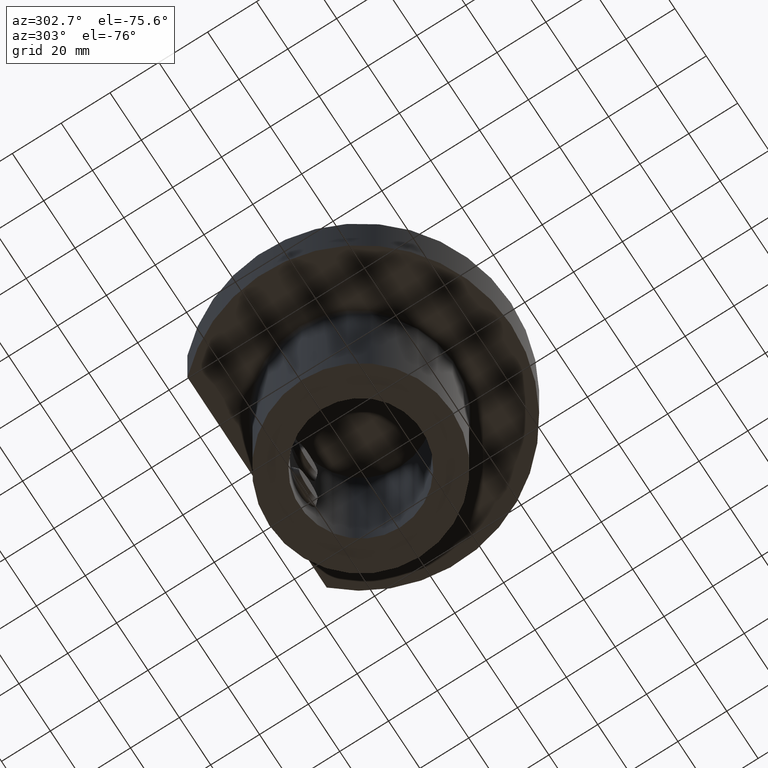
[diagram: clean part render]
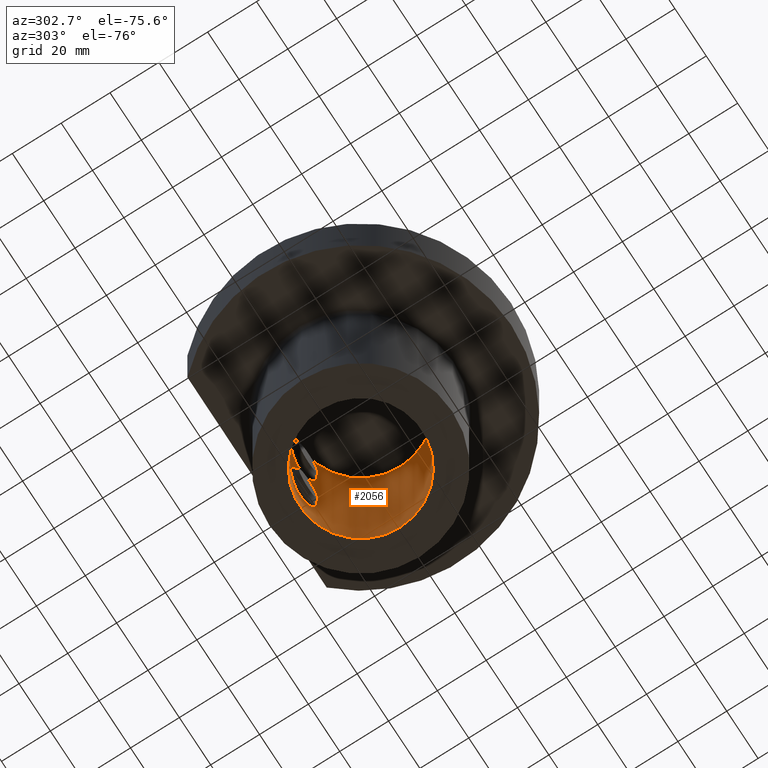
[diagram: same view with one face highlighted and labeled with its STEP entity id]
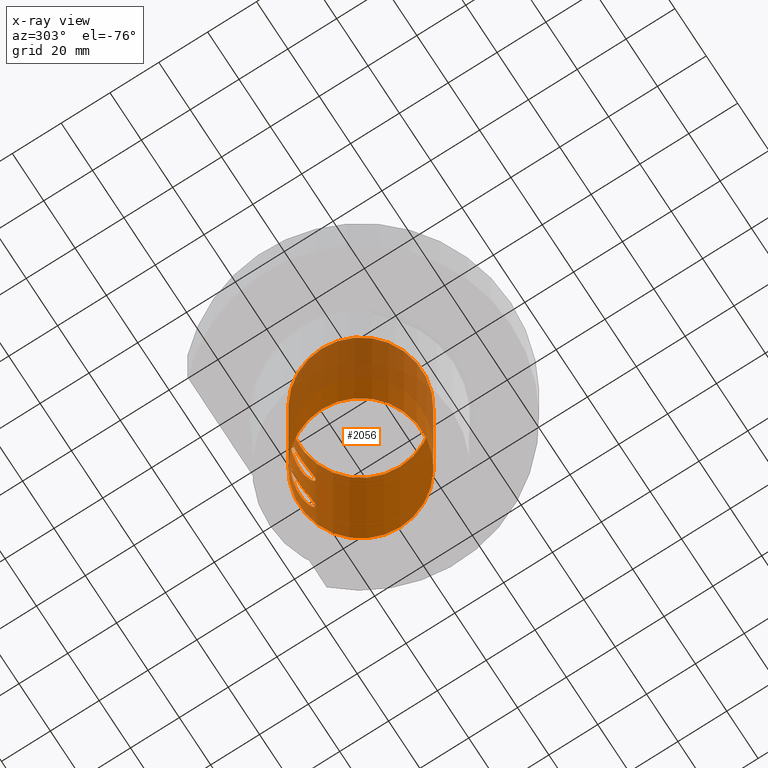
[diagram: x-ray of the same camera — body ghosted, the highlighted face saturated]
A machine part, auxiliary view. The second image highlights one B-rep face of the part: STEP entity #2056.
The next image is the same camera in x-ray: the body ghosted, the highlighted face saturated — about 34% of this face is hidden behind the body in this view.
In plain terms, the highlighted cylindrical surface (bore or boss wall) has radius 25 mm, axis along (-0, -0, -1).
Its self-contained STEP definition (entity closure, byte-faithful):
#58 = VERTEX_POINT ( 'NONE', #2453 ) ;
#84 = CARTESIAN_POINT ( 'NONE',  ( 5.283232693578720607, 24.43624188836538735, -33.98703924354256145 ) ) ;
#124 = CARTESIAN_POINT ( 'NONE',  ( 2.087939394558878892, 24.91796508502199003, -83.74044910550094301 ) ) ;
#153 = CARTESIAN_POINT ( 'NONE',  ( 7.173120264869881524, 23.94917276027051045, -43.55168137007378704 ) ) ;
#189 = CARTESIAN_POINT ( 'NONE',  ( -4.016045351225145943, 24.67930339366006365, -82.93881975800947259 ) ) ;
#221 = CARTESIAN_POINT ( 'NONE',  ( -5.286022485591604259, 24.43771186109113813, -46.02749517437685256 ) ) ;
#261 = CARTESIAN_POINT ( 'NONE',  ( 4.235546292640723465, 24.63956624237481918, -69.20827150128248206 ) ) ;
#296 = CARTESIAN_POINT ( 'NONE',  ( -6.355246737824958636, 24.18062479308375856, -35.11263581254626587 ) ) ;
#327 = CARTESIAN_POINT ( 'NONE',  ( -2.585092342586864600, 24.86727631948928874, -83.57540640016543421 ) ) ;
#355 = CARTESIAN_POINT ( 'NONE',  ( -6.016943766732864241, 24.26572631756485166, -45.27865306493048081 ) ) ;
#393 = CARTESIAN_POINT ( 'NONE',  ( 7.586585321997189268, 23.82200043979787907, -73.40851930458856600 ) ) ;
#426 = CARTESIAN_POINT ( 'NONE',  ( -2.081598207676718548, 24.91447963258562837, -32.27104989442653959 ) ) ;
#499 = CARTESIAN_POINT ( 'NONE',  ( -2.589455442944147645, 24.86681456427818304, -68.42610995595050838 ) ) ;
#505 = CARTESIAN_POINT ( 'NONE',  ( -4.885257966620121017, 24.52197647539978576, -46.35650252765911716 ) ) ;
#524 = FACE_BOUND ( 'NONE', #9615, .T. ) ;
#566 = CARTESIAN_POINT ( 'NONE',  ( -0.5310342171101222197, 24.99988834473702326, -68.00034892276474352 ) ) ;
#610 = CARTESIAN_POINT ( 'NONE',  ( -8.000000000000031974, 23.68543856465396402, -76.00000000000000000 ) ) ;
#651 = EDGE_LOOP ( 'NONE', ( #9332 ) ) ;
#675 = CARTESIAN_POINT ( 'NONE',  ( -8.000000000000033751, 23.68543856465397113, -76.53231545348803877 ) ) ;
#1013 = CARTESIAN_POINT ( 'NONE',  ( 7.727574139139621323, 23.77585123429835079, -37.91346509424673172 ) ) ;
#1069 = DIRECTION ( 'NONE',  ( -3.552713678800500140E-16, -1.224646799147350002E-16, -1.000000000000000000 ) ) ;
#1162 = CARTESIAN_POINT ( 'NONE',  ( 4.879693809956951789, 24.52001332875391881, -33.65517273093555417 ) ) ;
#1237 = CARTESIAN_POINT ( 'NONE',  ( 4.017865052121518232, 24.67895536812695312, -33.06249620044484061 ) ) ;
#1278 = CARTESIAN_POINT ( 'NONE',  ( 7.185872851256321248, 23.94592268356456088, -72.44538603949588662 ) ) ;
#1306 = CARTESIAN_POINT ( 'NONE',  ( 5.287988562034211526, 24.43727380229463719, -46.02568145312127967 ) ) ;
#1343 = CARTESIAN_POINT ( 'NONE',  ( -5.839387015473536557, 24.30919563068782807, -81.47437469559797307 ) ) ;
#1377 = CARTESIAN_POINT ( 'NONE',  ( -5.475739172390425402, 24.39368114705456136, -34.16189219740005711 ) ) ;
#1409 = ORIENTED_EDGE ( 'NONE', *, *, #3197, .F. ) ;
#1424 = CARTESIAN_POINT ( 'NONE',  ( 5.279954920656042994, 24.43694536756549951, -82.01580297458566804 ) ) ;
#1490 = CARTESIAN_POINT ( 'NONE',  ( 4.877560477166621666, 24.52043283984039945, -82.34643310724814569 ) ) ;
#1525 = CARTESIAN_POINT ( 'NONE',  ( -1.826761218723367497, 24.93450010446870024, -32.20694667434002412 ) ) ;
#1557 = CARTESIAN_POINT ( 'NONE',  ( 5.474994813983730779, 24.39385863179693459, -81.83888954494970847 ) ) ;
#1586 = CARTESIAN_POINT ( 'NONE',  ( -4.889519308986401747, 24.52120688279374505, -69.64634343396427596 ) ) ;
#1593 = CARTESIAN_POINT ( 'NONE',  ( -1.044781654543401883, 24.97953356031825578, -47.93584858893347445 ) ) ;
#1664 = CARTESIAN_POINT ( 'NONE',  ( -5.290007374338185464, 24.43680170086618730, -69.97636294705144167 ) ) ;
#1991 = EDGE_LOOP ( 'NONE', ( #1409 ) ) ;
#2048 = CARTESIAN_POINT ( 'NONE',  ( 6.503697277031719182, 24.13968428595022075, -44.66575856978575843 ) ) ;
#2056 = ADVANCED_FACE ( 'Defeature completata1_68', ( #10417, #524, #4972, #9586 ), #3881, .F. ) ;
#2119 = DIRECTION ( 'NONE',  ( -1.000000000000000000, 0.000000000000000000, 4.163336342344343929E-16 ) ) ;
#2201 = CARTESIAN_POINT ( 'NONE',  ( 6.348846675132334028, 24.18101170456889193, -44.87444289967168487 ) ) ;
#2272 = CARTESIAN_POINT ( 'NONE',  ( 6.024870727611026489, 24.26607304937154908, -34.71139395843217557 ) ) ;
#2346 = CARTESIAN_POINT ( 'NONE',  ( 7.574018196488935040, 23.82521253526695304, -37.41093098815795059 ) ) ;
#2382 = CARTESIAN_POINT ( 'NONE',  ( 6.357541531059365703, 24.17998829043283848, -80.88387952131172653 ) ) ;
#2415 = CARTESIAN_POINT ( 'NONE',  ( -7.186424383325113574, 23.94575699020569814, -36.44647738385827296 ) ) ;
#2450 = CARTESIAN_POINT ( 'NONE',  ( -6.014207798785776937, 24.26641085594027558, -81.28183186944502836 ) ) ;
#2453 = CARTESIAN_POINT ( 'NONE',  ( -25.00000000000000000, -1.224646799147353375E-14, -99.99999999999998579 ) ) ;
#2478 = CARTESIAN_POINT ( 'NONE',  ( -4.667669055761608732, 24.56137705486223766, -33.49763780215545950 ) ) ;
#2519 = CARTESIAN_POINT ( 'NONE',  ( -6.937784401963187797, 24.01993851387733514, -80.01725592508907425 ) ) ;
#2551 = CARTESIAN_POINT ( 'NONE',  ( -1.055519419702769079, 24.98301996946253567, -32.05262146982558846 ) ) ;
#2584 = CARTESIAN_POINT ( 'NONE',  ( 4.012726383827715182, 24.67695673170529957, -69.07423696741749097 ) ) ;
#2620 = CARTESIAN_POINT ( 'NONE',  ( -7.895000030900684251, 23.72070649416272659, -41.31811915912166455 ) ) ;
#2655 = CARTESIAN_POINT ( 'NONE',  ( -2.831536878833908588, 24.84031699905802171, -83.48668844874494255 ) ) ;
#2679 = CARTESIAN_POINT ( 'NONE',  ( -7.793387546050762005, 23.75428454412616475, -74.17471194807342272 ) ) ;
#2888 = AXIS2_PLACEMENT_3D ( 'NONE', #5036, #8289, #12662 ) ;
#3197 = EDGE_CURVE ( 'NONE', #8970, #8970, #13921, .T. ) ;
#3284 = CARTESIAN_POINT ( 'NONE',  ( 7.589606399388563851, 23.82105500478512283, -42.58368249428988861 ) ) ;
#3360 = CARTESIAN_POINT ( 'NONE',  ( 1.055001192302488011, 24.98303111169243707, -32.05258848080919876 ) ) ;
#3375 = CARTESIAN_POINT ( 'NONE',  ( -4.432010314303624783E-14, -1.224646799147353375E-14, -100.0000000000000000 ) ) ;
#3426 = CARTESIAN_POINT ( 'NONE',  ( 2.584436575667824254, 24.86734525391045025, -32.42436734725050229 ) ) ;
#3446 = DIRECTION ( 'NONE',  ( -1.000000000000000000, 0.000000000000000000, 5.551115123125792563E-16 ) ) ;
#3473 = CARTESIAN_POINT ( 'NONE',  ( 1.318064329657369527, 24.96655413040242522, -83.89501217481233653 ) ) ;
#3504 = CARTESIAN_POINT ( 'NONE',  ( 0.5278488671488079653, 24.99580656735017570, -47.98692407156011086 ) ) ;
#3541 = CARTESIAN_POINT ( 'NONE',  ( -5.289320106270437805, 24.43695612230670378, -82.02428160949830271 ) ) ;
#3571 = CARTESIAN_POINT ( 'NONE',  ( -7.999954717824393491, 23.68545385917335366, -40.26500733184401071 ) ) ;
#3608 = CARTESIAN_POINT ( 'NONE',  ( -7.575007928152908576, 23.82489869136021099, -78.58629687865405344 ) ) ;
#3635 = CARTESIAN_POINT ( 'NONE',  ( -8.000090212167799919, 23.68540809456878904, -39.47409688167511632 ) ) ;
#3678 = CARTESIAN_POINT ( 'NONE',  ( 7.588305034608171518, 23.82145322700170098, -78.58660630716846640 ) ) ;
#3713 = CARTESIAN_POINT ( 'NONE',  ( -2.587088401387740877, 24.87053350708040966, -47.58815410364926635 ) ) ;
#3762 = CARTESIAN_POINT ( 'NONE',  ( 4.015958742358032296, 24.67642816428153196, -82.92387937847598778 ) ) ;
#3773 = EDGE_CURVE ( 'NONE', #58, #58, #12270, .T. ) ;
#3799 = CARTESIAN_POINT ( 'NONE',  ( -4.878901081979910792, 24.52017433565688620, -33.65454344350248306 ) ) ;
#3881 = CYLINDRICAL_SURFACE ( 'NONE', #2888, 24.99999999999995737 ) ;
#4304 = CARTESIAN_POINT ( 'NONE',  ( 2.080000605445448958, 24.91460956692234063, -32.27063262715498837 ) ) ;
#4356 = CARTESIAN_POINT ( 'NONE',  ( -1.447730824111204192E-14, -1.959434878635791558E-15, -15.99999999999998579 ) ) ;
#4393 = DIRECTION ( 'NONE',  ( -4.440892098500630106E-16, -1.224646799147350002E-16, -1.000000000000000000 ) ) ;
#4449 = CARTESIAN_POINT ( 'NONE',  ( 1.825464389336046267, 24.93459238736724259, -32.20665193218937361 ) ) ;
#4514 = CARTESIAN_POINT ( 'NONE',  ( 7.999637040240939356, 23.68556115800613426, -39.46884741068448221 ) ) ;
#4547 = CARTESIAN_POINT ( 'NONE',  ( 1.054485028163441251, 24.98307149443160569, -68.05245913433061844 ) ) ;
#4605 = ORIENTED_EDGE ( 'NONE', *, *, #7924, .T. ) ;
#4615 = CARTESIAN_POINT ( 'NONE',  ( 7.934797897012891177, 23.70737729456863718, -74.94711582120851290 ) ) ;
#4654 = CARTESIAN_POINT ( 'NONE',  ( -5.840081616376468610, 24.30903937622861832, -45.47372173780243543 ) ) ;
#4689 = CARTESIAN_POINT ( 'NONE',  ( -1.822512147066021493, 24.93482289124914431, -83.79408630777869860 ) ) ;
#4726 = CARTESIAN_POINT ( 'NONE',  ( 4.887860977769664217, 24.52145189377304391, -46.35448106840755855 ) ) ;
#4762 = CARTESIAN_POINT ( 'NONE',  ( -4.888740793021677078, 24.52135497312625034, -82.35421540049479461 ) ) ;
#4832 = CARTESIAN_POINT ( 'NONE',  ( 7.895262261242456781, 23.72062025934933160, -74.68304254574083245 ) ) ;
#4857 = CARTESIAN_POINT ( 'NONE',  ( -8.000000000000031974, 23.68543856465396402, -76.00000000000000000 ) ) ;
#4917 = CARTESIAN_POINT ( 'NONE',  ( -8.000000000000030198, 23.68543856465396757, -76.00000000000000000 ) ) ;
#4941 = CARTESIAN_POINT ( 'NONE',  ( -6.014109146631114733, 24.26643316385575488, -70.71807987553494002 ) ) ;
#4947 = CARTESIAN_POINT ( 'NONE',  ( -7.934109389195783457, 23.70760801107815752, -41.05826572696530974 ) ) ;
#4972 = FACE_OUTER_BOUND ( 'NONE', #1991, .T. ) ;
#5012 = CARTESIAN_POINT ( 'NONE',  ( 0.5204686630001037484, 25.00011053895351765, -67.99965456570231481 ) ) ;
#5036 = CARTESIAN_POINT ( 'NONE',  ( -1.447730824111204192E-14, -1.959434878635791558E-15, -15.99999999999998579 ) ) ;
#5458 = CARTESIAN_POINT ( 'NONE',  ( 7.741800682507927966, 23.77133281728031022, -42.08322364343422350 ) ) ;
#5663 = CARTESIAN_POINT ( 'NONE',  ( 7.947573350738386999, 23.70332929257451582, -41.05421837912104621 ) ) ;
#5703 = CARTESIAN_POINT ( 'NONE',  ( -0.5260129492533762718, 25.00002560960683695, -84.00008003002236023 ) ) ;
#5735 = CARTESIAN_POINT ( 'NONE',  ( -3.552279012695437999, 24.75111668469460469, -47.18710114811860024 ) ) ;
#5772 = CARTESIAN_POINT ( 'NONE',  ( -6.346442954890572530, 24.18164703027052198, -80.87761265009642386 ) ) ;
#5806 = CARTESIAN_POINT ( 'NONE',  ( -7.948557588486740322, 23.70299946744716024, -38.95232690211945936 ) ) ;
#5848 = CARTESIAN_POINT ( 'NONE',  ( 7.741287452680234438, 23.77150393792642902, -78.08632631171707317 ) ) ;
#5881 = CARTESIAN_POINT ( 'NONE',  ( 4.023769200964281367, 24.67796728529315331, -46.93396683033054728 ) ) ;
#5916 = CARTESIAN_POINT ( 'NONE',  ( 6.355563233632200770, 24.18050904991972416, -71.11357029075897174 ) ) ;
#5985 = CARTESIAN_POINT ( 'NONE',  ( 2.588063703134713567, 24.87051702547655552, -83.58815314104822392 ) ) ;
#6012 = CARTESIAN_POINT ( 'NONE',  ( -4.016050497822691412, 24.67930964311319642, -69.06114640369047208 ) ) ;
#6022 = CARTESIAN_POINT ( 'NONE',  ( -7.588284521398634297, 23.82147970795991654, -42.58762497547225223 ) ) ;
#6069 = AXIS2_PLACEMENT_3D ( 'NONE', #3375, #4393, #3446 ) ;
#6165 = CARTESIAN_POINT ( 'NONE',  ( -8.000000000000030198, 23.68543856465395692, -75.46768454651194702 ) ) ;
#6488 = CARTESIAN_POINT ( 'NONE',  ( 3.559657137831198526, 24.75007821088692239, -32.81645211338115331 ) ) ;
#6690 = CARTESIAN_POINT ( 'NONE',  ( 6.939413212072951254, 24.01950290402707111, -35.98495457975603529 ) ) ;
#6797 = CARTESIAN_POINT ( 'NONE',  ( -2.080808792663125129, 24.91454131100772074, -83.72914738607978791 ) ) ;
#6830 = CARTESIAN_POINT ( 'NONE',  ( 5.840844245820769665, 24.30885295476096530, -45.47288347196758451 ) ) ;
#6866 = CARTESIAN_POINT ( 'NONE',  ( 2.584175929609995759, 24.87091700432892694, -68.41054588796188796 ) ) ;
#6897 = CARTESIAN_POINT ( 'NONE',  ( -0.5322843606376861381, 24.99999999999997158, -32.00000000000000711 ) ) ;
#6936 = CARTESIAN_POINT ( 'NONE',  ( 7.896854561101592118, 23.72009002438176850, -77.30757801557138009 ) ) ;
#6975 = CARTESIAN_POINT ( 'NONE',  ( -2.836099757252914966, 24.83980245015772326, -32.51501344821921435 ) ) ;
#7013 = CARTESIAN_POINT ( 'NONE',  ( 4.875770498703993816, 24.52079233236204914, -69.65217172333134954 ) ) ;
#7050 = CARTESIAN_POINT ( 'NONE',  ( 1.316904413197147461, 24.96663613198295906, -47.89527403719183951 ) ) ;
#7088 = CARTESIAN_POINT ( 'NONE',  ( 4.238447669739496604, 24.63906409742460824, -82.78990419660857469 ) ) ;
#7109 = CARTESIAN_POINT ( 'NONE',  ( -6.938101888953847940, 24.01985272663475257, -71.98318921180772634 ) ) ;
#7119 = CARTESIAN_POINT ( 'NONE',  ( 1.052830575903577204, 24.97920171177171866, -47.93480487030772252 ) ) ;
#7466 = ORIENTED_EDGE ( 'NONE', *, *, #11938, .T. ) ;
#7633 = CARTESIAN_POINT ( 'NONE',  ( 7.792764602003642516, 23.75448986549805142, -38.17179125581367316 ) ) ;
#7712 = CARTESIAN_POINT ( 'NONE',  ( 7.286338756620899915, 23.91485864966424302, -43.31340499426177360 ) ) ;
#7882 = CARTESIAN_POINT ( 'NONE',  ( 5.278987002311454901, 24.43715799335686256, -69.98332666537957891 ) ) ;
#7911 = CARTESIAN_POINT ( 'NONE',  ( -6.347442577226892979, 24.18137834656644358, -44.87624478474292999 ) ) ;
#7924 = EDGE_CURVE ( 'NONE', #10512, #10512, #13858, .T. ) ;
#7950 = CARTESIAN_POINT ( 'NONE',  ( 8.012856171442702902, 23.68108444979143457, -75.99677546031007580 ) ) ;
#7981 = CARTESIAN_POINT ( 'NONE',  ( 3.555519230950505261, 24.75063583923220278, -47.18544455261388038 ) ) ;
#8012 = CARTESIAN_POINT ( 'NONE',  ( 3.314183721324539533, 24.78056306319841084, -68.71401132310896287 ) ) ;
#8039 = CARTESIAN_POINT ( 'NONE',  ( -2.086675232959153359, 24.91819408605784503, -47.74119461417613763 ) ) ;
#8083 = CARTESIAN_POINT ( 'NONE',  ( 2.083568110222494774, 24.91835756827815729, -68.25828905110961387 ) ) ;
#8119 = CARTESIAN_POINT ( 'NONE',  ( -1.307907654612533666, 24.96711897829978000, -47.89680026736175478 ) ) ;
#8161 = CARTESIAN_POINT ( 'NONE',  ( 1.058135682134403455, 24.97898667720140153, -83.93412859848365315 ) ) ;
#8263 = CARTESIAN_POINT ( 'NONE',  ( -2.835217181601353165, 24.83989125980534141, -68.51472588241321660 ) ) ;
#8289 = DIRECTION ( 'NONE',  ( -3.552713678800499647E-16, -1.224646799147350002E-16, -1.000000000000000000 ) ) ;
#8393 = CARTESIAN_POINT ( 'NONE',  ( -1.019318715196879724E-14, 24.99999999999995737, -31.99999999999999289 ) ) ;
#8464 = B_SPLINE_CURVE_WITH_KNOTS ( 'NONE', 3,
 ( #4857, #6165, #13739, #2679, #10536, #9280, #13666, #12560, #7109, #11567, #9410, #4941, #11481, #1664, #1586, #6012, #10389, #8263, #499, #10463, #9344, #12628, #566, #5012, #4547, #8083, #6866, #8012, #11180, #2584, #261, #12458, #7013, #7882, #10292, #11457, #5916, #11394, #1278, #393, #13638, #4832, #4615, #12254, #7950, #8967, #12317, #6936, #5848, #3678, #10229, #9251, #2382, #13419, #1557, #1424, #1490, #11326, #7088, #3762, #13340, #9037, #5985, #124, #3473, #8161, #11248, #12378, #5703, #12532, #4689, #6797, #327, #2655, #10088, #189, #4762, #3541, #1343, #2450, #5772, #10166, #2519, #9106, #13484, #3608, #9179, #13556, #11758, #675, #610 ),
 .UNSPECIFIED., .T., .F.,
 ( 4, 2, 2, 2, 2, 2, 2, 2, 2, 2, 2, 2, 2, 2, 2, 2, 2, 2, 2, 2, 2, 2, 1, 2, 2, 2, 2, 2, 2, 2, 2, 2, 2, 2, 2, 2, 2, 2, 2, 2, 2, 2, 2, 2, 2, 4 ),
 ( 0.000000000000000000, 0.001573401548903369902, 0.002360102323355054744, 0.003146803097806739804, 0.004720204646710150255, 0.005506905421161855697, 0.006293606195613562007, 0.007867007744516998913, 0.009440409293420439288, 0.01022711006787215861, 0.01101381084232387966, 0.01258721239122732004, 0.01416061394013075868, 0.01573401548903419905, 0.01652071626348592878, 0.01730741703793765851, 0.01809411781238938824, 0.01888081858684111797, 0.02045422013574457742, 0.02202762168464803341, 0.02360102323355149634, 0.02438772400800322260, 0.02517442478245495580, 0.02596112555690668552, 0.02674782633135841872, 0.02832122788026187471, 0.02989462942916533764, 0.03146803097806879362, 0.03225473175252050601, 0.03304143252697221839, 0.03382813330142393077, 0.03461483407587565009, 0.03618823562477908873, 0.03697493639923082193, 0.03776163717368254125, 0.03933503872258599376, 0.04012173949703770615, 0.04090844027148942547, 0.04248184182039285717, 0.04405524336929627499, 0.04484194414374799431, 0.04562864491819970669, 0.04720204646710313146, 0.04798874724155482302, 0.04877544801600652152, 0.05034884956490986996 ),
 .UNSPECIFIED. ) ;
#8724 = CARTESIAN_POINT ( 'NONE',  ( 7.485459690743973660, 23.85327763998130024, -37.16528490574272325 ) ) ;
#8868 = CARTESIAN_POINT ( 'NONE',  ( 4.668119294672695929, 24.56129438080304794, -33.49794556411746527 ) ) ;
#8929 = CARTESIAN_POINT ( 'NONE',  ( 2.834155541589268967, 24.84002707249047504, -32.51426742658787106 ) ) ;
#8967 = CARTESIAN_POINT ( 'NONE',  ( 7.987364057007721563, 23.68971829510418914, -76.52081635463555642 ) ) ;
#8970 = VERTEX_POINT ( 'NONE', #13208 ) ;
#9037 = CARTESIAN_POINT ( 'NONE',  ( 3.318379758654704581, 24.78000259259165006, -83.28408479036464485 ) ) ;
#9069 = CARTESIAN_POINT ( 'NONE',  ( -6.934913112981240246, 24.02075282739550843, -44.02190706385495389 ) ) ;
#9106 = CARTESIAN_POINT ( 'NONE',  ( -7.183385840272571876, 23.94667661101695444, -79.55986262834720435 ) ) ;
#9134 = CARTESIAN_POINT ( 'NONE',  ( -0.5209562550530516534, 24.99594507469275939, -47.98735664112158616 ) ) ;
#9179 = CARTESIAN_POINT ( 'NONE',  ( -7.729018373484406013, 23.77538259939253251, -78.08133410063244639 ) ) ;
#9251 = CARTESIAN_POINT ( 'NONE',  ( 6.936484858769901507, 24.02031111057202750, -80.01942673796753525 ) ) ;
#9280 = CARTESIAN_POINT ( 'NONE',  ( -7.575763209133137721, 23.82465792997670562, -73.41595442772137403 ) ) ;
#9285 = CARTESIAN_POINT ( 'NONE',  ( -2.586714179093001498, 24.86711193959616750, -32.42513164547884230 ) ) ;
#9332 = ORIENTED_EDGE ( 'NONE', *, *, #3773, .T. ) ;
#9344 = CARTESIAN_POINT ( 'NONE',  ( -1.828311478986881289, 24.93440223115386800, -68.20725801546325329 ) ) ;
#9350 = CARTESIAN_POINT ( 'NONE',  ( 2.591924636712799046, 24.87001443758216723, -47.58645220758346284 ) ) ;
#9410 = CARTESIAN_POINT ( 'NONE',  ( -6.345757617037675935, 24.18182473655121001, -71.12152182595541206 ) ) ;
#9586 = FACE_OUTER_BOUND ( 'NONE', #651, .T. ) ;
#9615 = EDGE_LOOP ( 'NONE', ( #7466 ) ) ;
#9998 = CARTESIAN_POINT ( 'NONE',  ( -9.107298248878237246E-15, 24.99999999999996092, -32.00000000000000000 ) ) ;
#10088 = CARTESIAN_POINT ( 'NONE',  ( -3.554401891165555050, 24.75079849288971801, -83.18600356910192772 ) ) ;
#10121 = CARTESIAN_POINT ( 'NONE',  ( -4.020502904800042465, 24.67850546635635567, -46.93587962532919278 ) ) ;
#10166 = CARTESIAN_POINT ( 'NONE',  ( -6.503268067059403634, 24.13980279750865421, -80.66640159458148673 ) ) ;
#10198 = CARTESIAN_POINT ( 'NONE',  ( -7.794165896075456956, 23.75402946569855089, -38.17783791916510694 ) ) ;
#10229 = CARTESIAN_POINT ( 'NONE',  ( 7.187485782235494725, 23.94543913305105320, -79.55147203518568233 ) ) ;
#10257 = CARTESIAN_POINT ( 'NONE',  ( -7.183149219776955086, 23.94676021387571296, -43.56093137785656211 ) ) ;
#10292 = CARTESIAN_POINT ( 'NONE',  ( 5.474174226338451632, 24.39404022674180794, -70.16036368564455472 ) ) ;
#10321 = CARTESIAN_POINT ( 'NONE',  ( -6.939329065558644594, 24.01952307191847069, -35.98487834314662592 ) ) ;
#10389 = CARTESIAN_POINT ( 'NONE',  ( -3.556257429566788364, 24.75050807878221093, -68.81500358916589732 ) ) ;
#10398 = CARTESIAN_POINT ( 'NONE',  ( 2.092798913597153199, 24.91764075165619374, -47.73941536103738059 ) ) ;
#10417 = FACE_BOUND ( 'NONE', #12688, .T. ) ;
#10463 = CARTESIAN_POINT ( 'NONE',  ( -2.086708972000437257, 24.91404005237535202, -68.27246898702323108 ) ) ;
#10512 = VERTEX_POINT ( 'NONE', #8393 ) ;
#10536 = CARTESIAN_POINT ( 'NONE',  ( -7.729429758628785230, 23.77524824870774367, -73.92024152198095521 ) ) ;
#10990 = CARTESIAN_POINT ( 'NONE',  ( 6.017811683691771663, 24.26551305248787571, -45.27768796217822711 ) ) ;
#11180 = CARTESIAN_POINT ( 'NONE',  ( 3.552611202901439391, 24.74738612886100242, -68.82733520538057803 ) ) ;
#11211 = CARTESIAN_POINT ( 'NONE',  ( 0.003159161157294583782, 25.00412376748737842, -48.01285849070821143 ) ) ;
#11248 = CARTESIAN_POINT ( 'NONE',  ( 0.5314237167440961640, 24.99573994453641390, -83.98671625715881817 ) ) ;
#11282 = CARTESIAN_POINT ( 'NONE',  ( -6.025530098441076454, 24.26591404801499152, -34.71210100057715664 ) ) ;
#11326 = CARTESIAN_POINT ( 'NONE',  ( 4.669248679263807489, 24.56106746493954063, -82.50118100189769166 ) ) ;
#11360 = CARTESIAN_POINT ( 'NONE',  ( -9.107298248878237246E-15, 24.99999999999996092, -32.00000000000000000 ) ) ;
#11394 = CARTESIAN_POINT ( 'NONE',  ( 6.934628040484447808, 24.02084794236194654, -71.97739968923363563 ) ) ;
#11419 = CARTESIAN_POINT ( 'NONE',  ( -7.575595568073334896, 23.82471123239805166, -37.41546964321981505 ) ) ;
#11457 = CARTESIAN_POINT ( 'NONE',  ( 6.026931735408973978, 24.26559750003184845, -70.71342863155066993 ) ) ;
#11481 = CARTESIAN_POINT ( 'NONE',  ( -5.839536091161901865, 24.30915839939790857, -70.52579562113636769 ) ) ;
#11488 = CARTESIAN_POINT ( 'NONE',  ( -4.018367518776205571, 24.67886203747982776, -33.06284519789758036 ) ) ;
#11567 = CARTESIAN_POINT ( 'NONE',  ( -6.502901587918755055, 24.13990299577701393, -71.33306550075377572 ) ) ;
#11758 = CARTESIAN_POINT ( 'NONE',  ( -7.947375221251509636, 23.70339555630467743, -77.05548784366261827 ) ) ;
#11938 = EDGE_CURVE ( 'NONE', #13788, #13788, #8464, .T. ) ;
#11949 = CARTESIAN_POINT ( 'NONE',  ( 6.792481960973959509, 24.06002129064863126, -44.23433231013372335 ) ) ;
#12088 = CARTESIAN_POINT ( 'NONE',  ( 6.926415813182384085, 24.02168383395438767, -44.01159056631070854 ) ) ;
#12254 = CARTESIAN_POINT ( 'NONE',  ( 7.986920740967481613, 23.68986802963240379, -75.47210553332813276 ) ) ;
#12270 = CIRCLE ( 'NONE', #6069, 24.99999999999995737 ) ;
#12286 = CARTESIAN_POINT ( 'NONE',  ( -7.729260543443453813, 23.77530325715604320, -37.91962098941110781 ) ) ;
#12317 = CARTESIAN_POINT ( 'NONE',  ( 7.935878703895990149, 23.70701513640260671, -77.04453982762011321 ) ) ;
#12348 = CARTESIAN_POINT ( 'NONE',  ( -7.486927456774549405, 23.85281766521102043, -37.16910405398475348 ) ) ;
#12378 = CARTESIAN_POINT ( 'NONE',  ( 0.2648301021988156978, 24.99998715085494538, -83.99995984642144720 ) ) ;
#12414 = CARTESIAN_POINT ( 'NONE',  ( -3.560770169760496984, 24.74990719542113737, -32.81704393359806460 ) ) ;
#12458 = CARTESIAN_POINT ( 'NONE',  ( 4.667068446580254992, 24.56148507571180062, -69.49723900851877545 ) ) ;
#12493 = CARTESIAN_POINT ( 'NONE',  ( -7.740493502950245741, 23.77175905589096061, -42.08772956894479478 ) ) ;
#12532 = CARTESIAN_POINT ( 'NONE',  ( -1.047831925233930317, 24.98339089941819680, -83.94854551812386489 ) ) ;
#12560 = CARTESIAN_POINT ( 'NONE',  ( -7.183955828510703689, 23.94650663575126615, -72.44120558150162026 ) ) ;
#12628 = CARTESIAN_POINT ( 'NONE',  ( -1.052518171533200819, 24.98320947066779851, -68.05201865215961732 ) ) ;
#12662 = DIRECTION ( 'NONE',  ( -1.000000000000000000, 0.000000000000000000, 4.163336342344343929E-16 ) ) ;
#12688 = EDGE_LOOP ( 'NONE', ( #4605 ) ) ;
#13085 = CARTESIAN_POINT ( 'NONE',  ( 6.354696425149651162, 24.18077353660647688, -35.11186346357788324 ) ) ;
#13160 = CARTESIAN_POINT ( 'NONE',  ( 5.475522710261178538, 24.39372856247845789, -34.16169919101054830 ) ) ;
#13208 = CARTESIAN_POINT ( 'NONE',  ( -24.99999999999997158, -1.959434878635791558E-15, -15.99999999999997691 ) ) ;
#13237 = CARTESIAN_POINT ( 'NONE',  ( 7.185394102822400875, 23.94606346342280290, -36.44458478141061164 ) ) ;
#13300 = CARTESIAN_POINT ( 'NONE',  ( 8.000359185141537210, 23.68531724621743706, -40.52016224147171641 ) ) ;
#13340 = CARTESIAN_POINT ( 'NONE',  ( 3.556427342072474573, 24.74683527499684743, -83.17076389435369776 ) ) ;
#13376 = CARTESIAN_POINT ( 'NONE',  ( 7.947972188201568144, 23.70319838639389332, -38.94745664516080552 ) ) ;
#13419 = CARTESIAN_POINT ( 'NONE',  ( 6.028711851150900358, 24.26516560958887680, -81.28464102289649418 ) ) ;
#13425 = AXIS2_PLACEMENT_3D ( 'NONE', #4356, #1069, #2119 ) ;
#13448 = CARTESIAN_POINT ( 'NONE',  ( -7.986698262909394330, 23.68994344155134968, -40.53166625418044333 ) ) ;
#13484 = CARTESIAN_POINT ( 'NONE',  ( -7.485191626936985365, 23.85336442765976983, -78.83554577176347777 ) ) ;
#13518 = CARTESIAN_POINT ( 'NONE',  ( -6.502105477205796902, 24.14011228087279903, -44.66795602400149079 ) ) ;
#13556 = CARTESIAN_POINT ( 'NONE',  ( -7.793097370934572332, 23.75437995020357107, -77.82656514830533467 ) ) ;
#13592 = CARTESIAN_POINT ( 'NONE',  ( -5.283200402239794258, 24.43625214161379589, -33.98699008915538400 ) ) ;
#13638 = CARTESIAN_POINT ( 'NONE',  ( 7.739458614897664290, 23.77210018060054608, -73.90740524974378900 ) ) ;
#13666 = CARTESIAN_POINT ( 'NONE',  ( -7.485924132634034223, 23.85313480930680896, -73.16636282399639413 ) ) ;
#13739 = CARTESIAN_POINT ( 'NONE',  ( -7.947406901286547587, 23.70338410713523913, -74.94501791144996616 ) ) ;
#13788 = VERTEX_POINT ( 'NONE', #4917 ) ;
#13858 = B_SPLINE_CURVE_WITH_KNOTS ( 'NONE', 3,
 ( #9998, #14268, #3360, #4449, #4304, #3426, #8929, #6488, #1237, #8868, #1162, #84, #13160, #2272, #13085, #6690, #13237, #8724, #2346, #1013, #7633, #13376, #4514, #13300, #5663, #5458, #3284, #7712, #153, #12088, #11949, #2048, #2201, #10990, #6830, #1306, #4726, #5881, #7981, #9350, #10398, #7050, #7119, #3504, #11211, #9134, #1593, #8119, #8039, #3713, #5735, #10121, #505, #221, #4654, #355, #7911, #13518, #9069, #10257, #6022, #12493, #2620, #4947, #13448, #3571, #3635, #5806, #10198, #12286, #11419, #12348, #2415, #10321, #296, #11282, #1377, #13592, #3799, #2478, #11488, #12414, #6975, #9285, #426, #1525, #2551, #6897, #11360 ),
 .UNSPECIFIED., .T., .F.,
 ( 4, 2, 2, 2, 2, 2, 2, 2, 2, 2, 2, 2, 2, 2, 2, 2, 2, 2, 2, 2, 2, 2, 1, 2, 2, 2, 2, 2, 2, 2, 2, 2, 2, 2, 2, 2, 2, 2, 2, 2, 2, 2, 2, 2, 4 ),
 ( 0.000000000000000000, 0.001573440862610926867, 0.002360161293916388132, 0.003146881725221849831, 0.004720322587832772795, 0.005507043019138241867, 0.006293763450443710938, 0.007867204313054661224, 0.009440645175665614980, 0.01022736560697108145, 0.01101408603827654618, 0.01258752690088747739, 0.01416096776349841033, 0.01573440862610933980, 0.01652112905741481494, 0.01730784948872029008, 0.01809456992002576523, 0.01888129035133124037, 0.02045473121394217678, 0.02202817207655310972, 0.02360161293916404612, 0.02438833337046951433, 0.02517505380177497559, 0.02596177423308043686, 0.02674849466438590506, 0.02832193552699684494, 0.02989537638960778135, 0.03146881725221871429, 0.03225553768352418943, 0.03304225811482965763, 0.03461569897744060792, 0.03618913984005156514, 0.03697586027135704029, 0.03776258070266251543, 0.03933602156527346572, 0.04012274199657894086, 0.04090946242788441600, 0.04248290329049537323, 0.04405634415310632351, 0.04484306458441181253, 0.04562978501571729462, 0.04720322587832827266, 0.04798994630963376168, 0.04877666674093924376, 0.05035010760355022180 ),
 .UNSPECIFIED. ) ;
#13921 = CIRCLE ( 'NONE', #13425, 24.99999999999995737 ) ;
#14268 = CARTESIAN_POINT ( 'NONE',  ( 0.5322843606376490566, 24.99999999999995026, -31.99999999999999289 ) ) ;